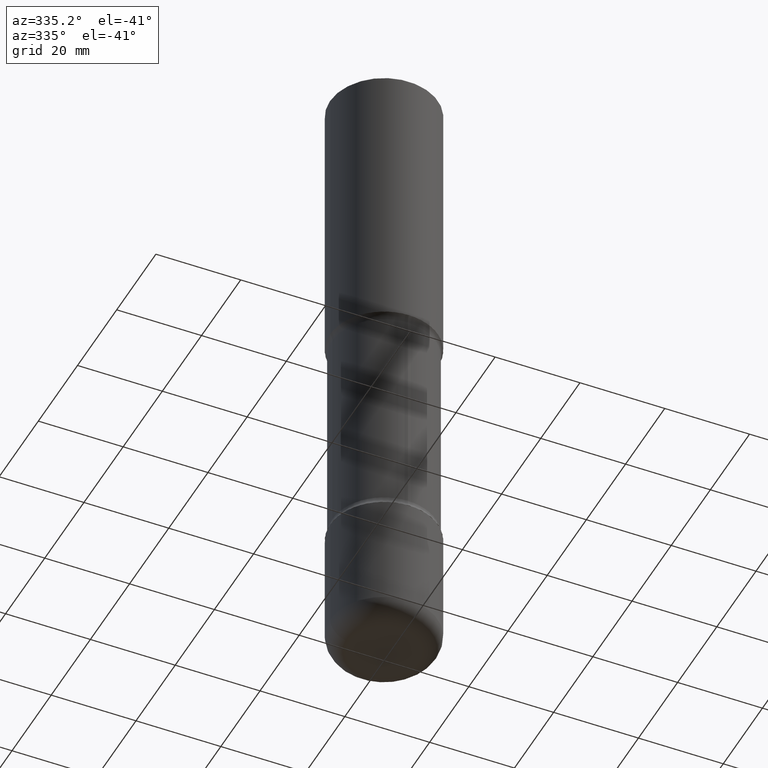
[diagram: clean part render]
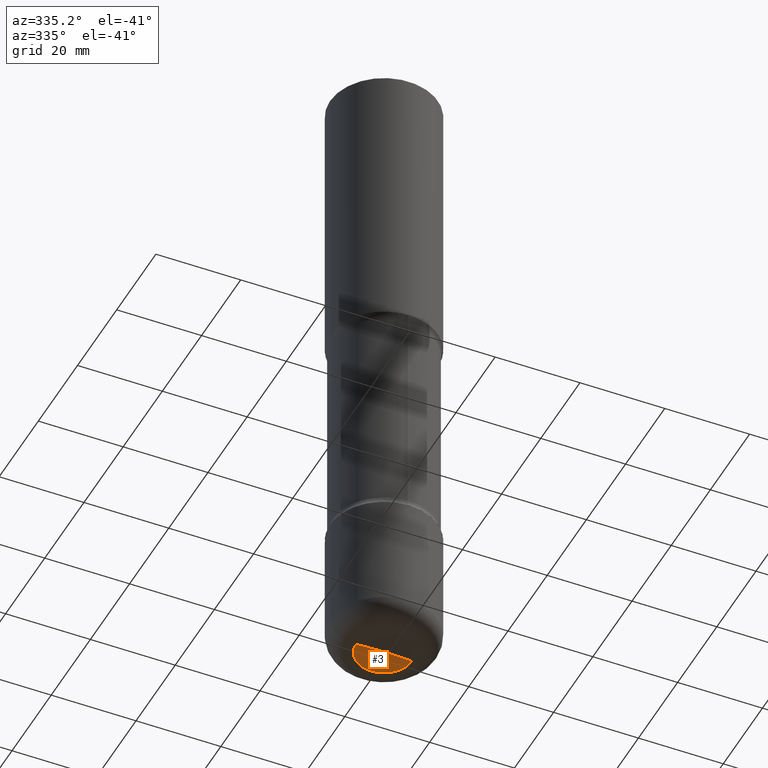
[diagram: same view with one face highlighted and labeled with its STEP entity id]
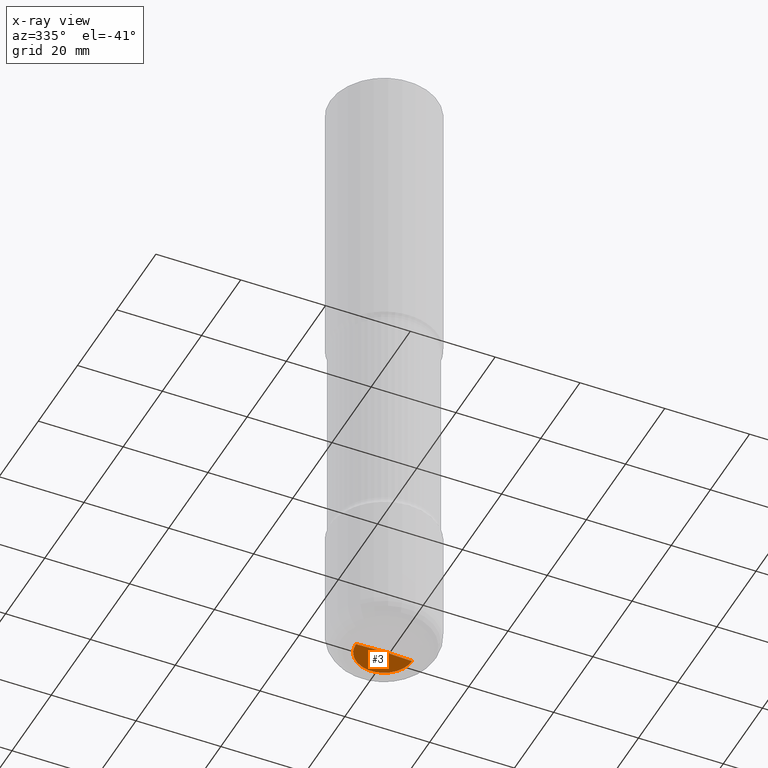
[diagram: x-ray of the same camera — body ghosted, the highlighted face saturated]
A machine part, auxiliary view. The second image highlights one B-rep face of the part: STEP entity #3.
The next image is the same camera in x-ray: the body ghosted, the highlighted face saturated — about 0% of this face is hidden behind the body in this view.
In plain terms, the highlighted conical surface has half-angle 88 deg.
Its self-contained STEP definition (entity closure, byte-faithful):
#3 = ADVANCED_FACE ( 'NONE', ( #529 ), #305, .F. ) ;
#20 = CARTESIAN_POINT ( 'NONE',  ( 1.467281283711081734E-28, -2.094888803305886955E-14, -5.999999999999999112 ) ) ;
#36 = CARTESIAN_POINT ( 'NONE',  ( 1.109289089035737502E-27, -1.583770827071991708E-13, -45.36099934008962720 ) ) ;
#47 = VECTOR ( 'NONE', #109, 39.37007874015748854 ) ;
#64 = CARTESIAN_POINT ( 'NONE',  ( 5.810467183974084067E-16, -2.091718747715406976E-14, -5.990920599932144874 ) ) ;
#76 = CARTESIAN_POINT ( 'NONE',  ( -5.810467183971152463E-16, -2.091718747715406029E-14, -5.990920599932144874 ) ) ;
#86 = CARTESIAN_POINT ( 'NONE',  ( 1.505635220232202175E-28, -2.033614075875680157E-14, -5.990920599932144874 ) ) ;
#109 = DIRECTION ( 'NONE',  ( 0.9993908270190957621, -6.978169709227544643E-15, -0.03489949670250174635 ) ) ;
#117 = EDGE_CURVE ( 'NONE', #180, #436, #603, .T. ) ;
#137 = VERTEX_POINT ( 'NONE', #567 ) ;
#180 = VERTEX_POINT ( 'NONE', #86 ) ;
#200 = DIRECTION ( 'NONE',  ( -0.9993908270190957621, 6.856857904024554104E-15, -0.03489949670250174635 ) ) ;
#220 = ORIENTED_EDGE ( 'NONE', *, *, #117, .T. ) ;
#223 = AXIS2_PLACEMENT_3D ( 'NONE', #36, #409, #779 ) ;
#250 = ORIENTED_EDGE ( 'NONE', *, *, #698, .F. ) ;
#281 = DIRECTION ( 'NONE',  ( -2.445468806185136597E-29, 3.491481338843145583E-15, 1.000000000000000000 ) ) ;
#297 = EDGE_CURVE ( 'NONE', #137, #436, #337, .T. ) ;
#305 = CONICAL_SURFACE ( 'NONE', #223, 1127.411546571455347, 1.535889741755009252 ) ;
#337 = CIRCLE ( 'NONE', #651, 0.2600000000000000644 ) ;
#409 = DIRECTION ( 'NONE',  ( 2.445468806185136597E-29, -3.491481338843145583E-15, -1.000000000000000000 ) ) ;
#436 = VERTEX_POINT ( 'NONE', #583 ) ;
#506 = EDGE_LOOP ( 'NONE', ( #250, #220, #746 ) ) ;
#529 = FACE_OUTER_BOUND ( 'NONE', #506, .T. ) ;
#567 = CARTESIAN_POINT ( 'NONE',  ( 0.2600000000000000089, -2.273261751247946738E-14, -5.999999999999999112 ) ) ;
#569 = VECTOR ( 'NONE', #200, 39.37007874015748854 ) ;
#583 = CARTESIAN_POINT ( 'NONE',  ( -0.2600000000000000089, -1.913331773686043958E-14, -5.999999999999999112 ) ) ;
#592 = DIRECTION ( 'NONE',  ( 1.000000000000000000, -6.982962677686272233E-15, 0.000000000000000000 ) ) ;
#603 = LINE ( 'NONE', #76, #569 ) ;
#651 = AXIS2_PLACEMENT_3D ( 'NONE', #20, #281, #592 ) ;
#685 = LINE ( 'NONE', #64, #47 ) ;
#698 = EDGE_CURVE ( 'NONE', #180, #137, #685, .T. ) ;
#746 = ORIENTED_EDGE ( 'NONE', *, *, #297, .F. ) ;
#779 = DIRECTION ( 'NONE',  ( -1.000000000000000000, 6.982962677686266711E-15, 0.000000000000000000 ) ) ;